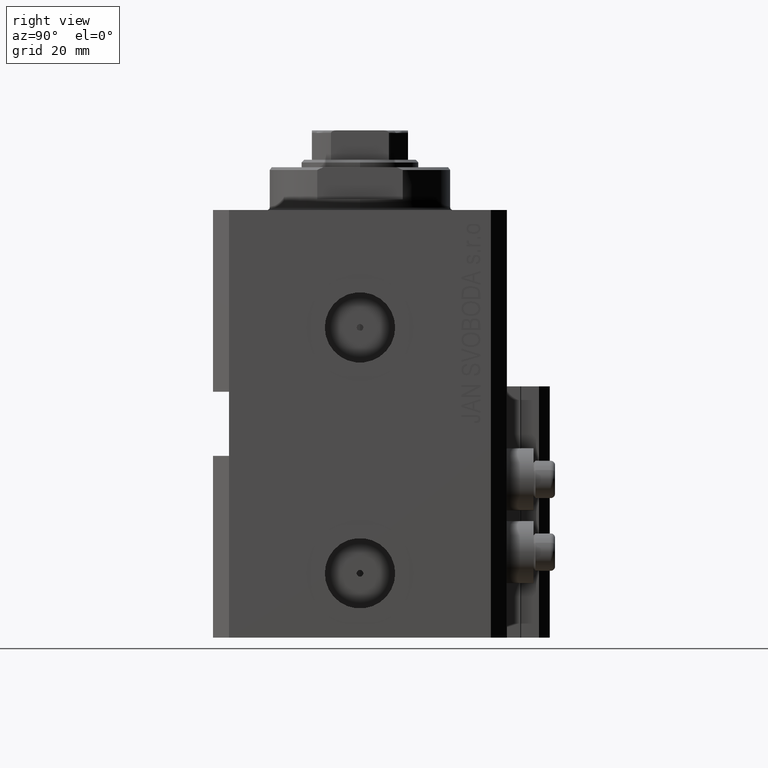
[diagram: clean part render]
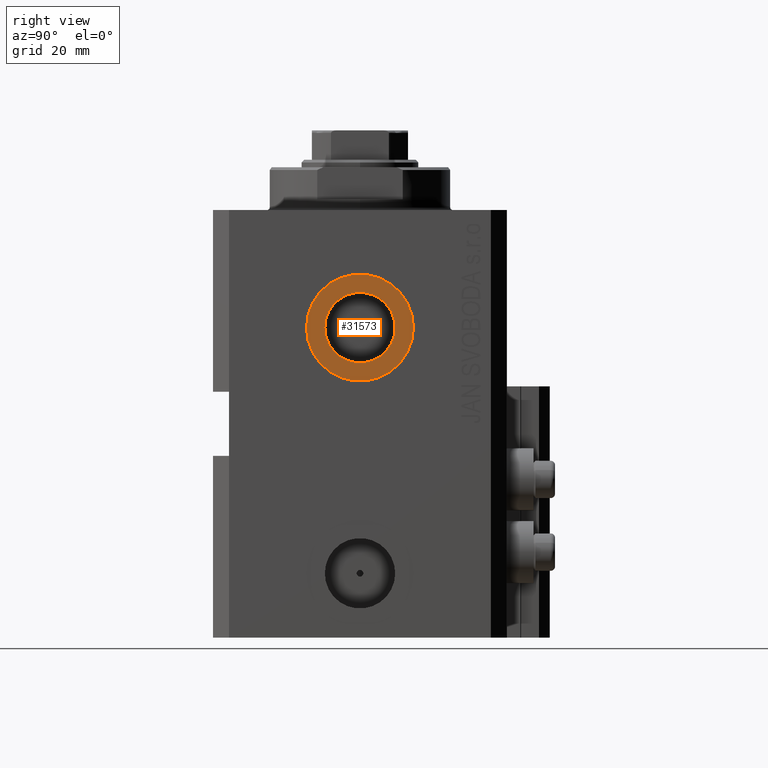
[diagram: same view with one face highlighted and labeled with its STEP entity id]
A machine part, right view. The second image highlights one B-rep face of the part: STEP entity #31573.
In plain terms, the highlighted planar face has unit normal (1, -0, 0).
Its self-contained STEP definition (entity closure, byte-faithful):
#6 = AXIS2_PLACEMENT_3D ( 'NONE', #32919, #18782, #25736 ) ;
#2322 = CIRCLE ( 'NONE', #5384, 10.00000000000000000 ) ;
#2444 = EDGE_LOOP ( 'NONE', ( #24102, #14532 ) ) ;
#3637 = DIRECTION ( 'NONE',  ( 1.318389841742373392E-14, 1.000000000000000000, 0.000000000000000000 ) ) ;
#3903 = FACE_OUTER_BOUND ( 'NONE', #2444, .T. ) ;
#3997 = DIRECTION ( 'NONE',  ( 1.000000000000000000, -1.334402673828349134E-14, 0.000000000000000000 ) ) ;
#4962 = VERTEX_POINT ( 'NONE', #37461 ) ;
#5384 = AXIS2_PLACEMENT_3D ( 'NONE', #7248, #43194, #3637 ) ;
#7248 = CARTESIAN_POINT ( 'NONE',  ( 37.40000000000025437, -4.022543243901666471E-13, -22.00000000000000000 ) ) ;
#8008 = CIRCLE ( 'NONE', #19471, 6.580000000000002736 ) ;
#10150 = DIRECTION ( 'NONE',  ( 1.000000000000000000, -1.334402673828349134E-14, 0.000000000000000000 ) ) ;
#12862 = CIRCLE ( 'NONE', #35801, 10.00000000000000000 ) ;
#14532 = ORIENTED_EDGE ( 'NONE', *, *, #32157, .T. ) ;
#14703 = DIRECTION ( 'NONE',  ( 1.000000000000000000, -1.334402673828349134E-14, 0.000000000000000000 ) ) ;
#14705 = FACE_BOUND ( 'NONE', #22366, .T. ) ;
#15694 = EDGE_CURVE ( 'NONE', #46274, #44346, #8008, .T. ) ;
#18782 = DIRECTION ( 'NONE',  ( 1.000000000000000000, -1.334402673828349134E-14, 0.000000000000000000 ) ) ;
#19471 = AXIS2_PLACEMENT_3D ( 'NONE', #36276, #14703, #25274 ) ;
#19747 = CARTESIAN_POINT ( 'NONE',  ( 37.40000000000016200, -6.580000000000500116, -22.00000000000000000 ) ) ;
#19981 = CARTESIAN_POINT ( 'NONE',  ( 37.40000000000011937, -10.00000000000040323, -22.00000000000000000 ) ) ;
#21209 = CIRCLE ( 'NONE', #28891, 6.580000000000002736 ) ;
#22235 = EDGE_CURVE ( 'NONE', #44346, #46274, #21209, .T. ) ;
#22366 = EDGE_LOOP ( 'NONE', ( #42596, #28110 ) ) ;
#24005 = CARTESIAN_POINT ( 'NONE',  ( 37.40000000000033964, 6.579999999999503579, -22.00000000000000000 ) ) ;
#24102 = ORIENTED_EDGE ( 'NONE', *, *, #27066, .T. ) ;
#25274 = DIRECTION ( 'NONE',  ( 1.370906090437597808E-14, 1.000000000000000000, 0.000000000000000000 ) ) ;
#25481 = DIRECTION ( 'NONE',  ( 1.370906090437597808E-14, 1.000000000000000000, 0.000000000000000000 ) ) ;
#25736 = DIRECTION ( 'NONE',  ( 1.334402673828349134E-14, 1.000000000000000000, 0.000000000000000000 ) ) ;
#27066 = EDGE_CURVE ( 'NONE', #4962, #39691, #12862, .T. ) ;
#28110 = ORIENTED_EDGE ( 'NONE', *, *, #15694, .F. ) ;
#28891 = AXIS2_PLACEMENT_3D ( 'NONE', #42977, #10150, #25481 ) ;
#31573 = ADVANCED_FACE ( 'NONE', ( #14705, #3903 ), #47052, .T. ) ;
#32157 = EDGE_CURVE ( 'NONE', #39691, #4962, #2322, .T. ) ;
#32919 = CARTESIAN_POINT ( 'NONE',  ( 37.40000000000025437, -4.022543243901666471E-13, -22.00000000000000000 ) ) ;
#33246 = CARTESIAN_POINT ( 'NONE',  ( 37.40000000000025437, -4.022543243901666471E-13, -22.00000000000000000 ) ) ;
#35801 = AXIS2_PLACEMENT_3D ( 'NONE', #33246, #3997, #36137 ) ;
#36137 = DIRECTION ( 'NONE',  ( 1.318389841742373392E-14, 1.000000000000000000, 0.000000000000000000 ) ) ;
#36276 = CARTESIAN_POINT ( 'NONE',  ( 37.40000000000025437, -4.990666000118059729E-13, -22.00000000000000000 ) ) ;
#37461 = CARTESIAN_POINT ( 'NONE',  ( 37.40000000000038227, 9.999999999999598543, -22.00000000000000000 ) ) ;
#39691 = VERTEX_POINT ( 'NONE', #19981 ) ;
#42596 = ORIENTED_EDGE ( 'NONE', *, *, #22235, .F. ) ;
#42977 = CARTESIAN_POINT ( 'NONE',  ( 37.40000000000025437, -4.990666000118059729E-13, -22.00000000000000000 ) ) ;
#43194 = DIRECTION ( 'NONE',  ( 1.000000000000000000, -1.334402673828349134E-14, 0.000000000000000000 ) ) ;
#44346 = VERTEX_POINT ( 'NONE', #24005 ) ;
#46274 = VERTEX_POINT ( 'NONE', #19747 ) ;
#47052 = PLANE ( 'NONE',  #6 ) ;